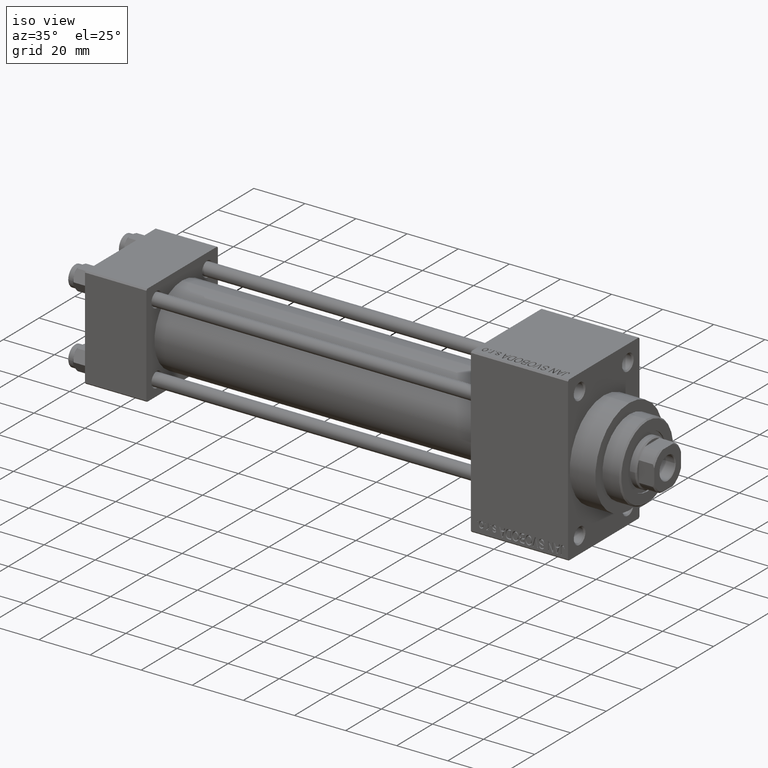
[diagram: clean part render]
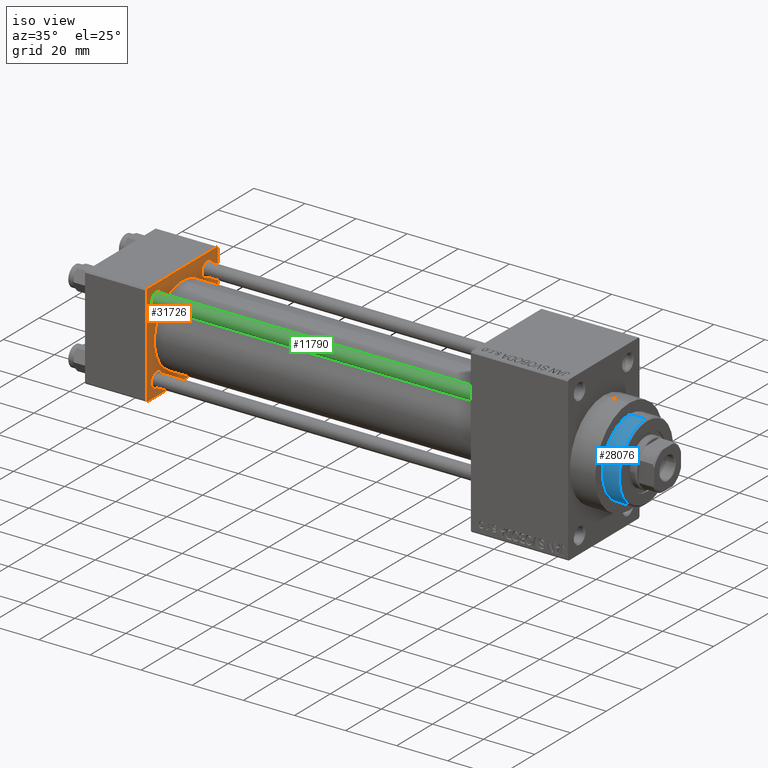
[diagram: same view with three faces highlighted in distinct colors, each labeled with its STEP entity id]
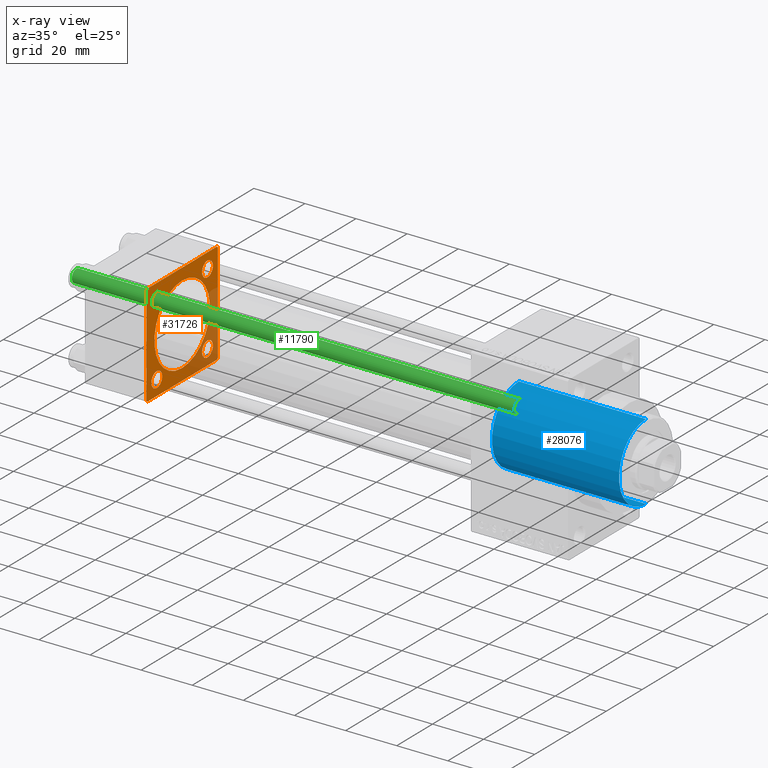
[diagram: x-ray of the same camera — body ghosted, the three highlighted faces saturated]
A machine part, iso view with three faces highlighted in distinct colors.
The next image is the same camera in x-ray (body ghosted, the three faces saturated) — at least one of them is partly hidden behind the body in this view.
Their STEP definitions:

[orange] entity #31726 — the highlighted planar face has unit normal (-1, 0, 0).
#9 = EDGE_CURVE ( 'NONE', #19462, #23766, #14274, .T. ) ;
#228 = VERTEX_POINT ( 'NONE', #38848 ) ;
#240 = LINE ( 'NONE', #36621, #46624 ) ;
#403 = FACE_BOUND ( 'NONE', #22604, .T. ) ;
#1099 = FACE_OUTER_BOUND ( 'NONE', #10212, .T. ) ;
#1164 = EDGE_CURVE ( 'NONE', #3238, #14488, #34077, .T. ) ;
#2037 = CARTESIAN_POINT ( 'NONE',  ( 24.00000000000000000, -20.00000000000000355, 19.49999999999998224 ) ) ;
#2334 = CARTESIAN_POINT ( 'NONE',  ( 23.99999999999999289, -2.602085213965210642E-15, 15.50000000000000000 ) ) ;
#3238 = VERTEX_POINT ( 'NONE', #9308 ) ;
#3998 = ORIENTED_EDGE ( 'NONE', *, *, #44336, .T. ) ;
#4413 = DIRECTION ( 'NONE',  ( 0.000000000000000000, 0.000000000000000000, 1.000000000000000000 ) ) ;
#4822 = AXIS2_PLACEMENT_3D ( 'NONE', #14562, #14332, #43355 ) ;
#4842 = CARTESIAN_POINT ( 'NONE',  ( 24.00000000000000000, -19.50000000000000711, -20.00000000000000000 ) ) ;
#5554 = ORIENTED_EDGE ( 'NONE', *, *, #27272, .T. ) ;
#5600 = AXIS2_PLACEMENT_3D ( 'NONE', #34516, #38561, #30949 ) ;
#5924 = ORIENTED_EDGE ( 'NONE', *, *, #26615, .F. ) ;
#5961 = DIRECTION ( 'NONE',  ( 1.000000000000000000, 0.000000000000000000, 0.000000000000000000 ) ) ;
#6075 = DIRECTION ( 'NONE',  ( -0.000000000000000000, -0.7071067811865500152, -0.7071067811865451302 ) ) ;
#6253 = EDGE_LOOP ( 'NONE', ( #37983, #5554 ) ) ;
#6348 = CARTESIAN_POINT ( 'NONE',  ( 24.00000000000000000, -20.00000000000000355, 19.49999999999998224 ) ) ;
#6522 = DIRECTION ( 'NONE',  ( 0.000000000000000000, -0.7071067811865425767, 0.7071067811865525687 ) ) ;
#7330 = DIRECTION ( 'NONE',  ( -1.000000000000000000, -0.000000000000000000, -0.000000000000000000 ) ) ;
#7341 = CARTESIAN_POINT ( 'NONE',  ( 24.00000000000000000, -14.14999999999999503, 17.14999999999998082 ) ) ;
#7560 = CARTESIAN_POINT ( 'NONE',  ( 24.00000000000000000, 14.14999999999999858, 14.15000000000000036 ) ) ;
#7843 = AXIS2_PLACEMENT_3D ( 'NONE', #7560, #7330, #36339 ) ;
#7966 = EDGE_CURVE ( 'NONE', #18482, #35179, #20753, .T. ) ;
#8704 = DIRECTION ( 'NONE',  ( -1.000000000000000000, 0.000000000000000000, -0.000000000000000000 ) ) ;
#8874 = CARTESIAN_POINT ( 'NONE',  ( 24.00000000000000000, 14.14999999999999858, -11.14999999999999858 ) ) ;
#8926 = EDGE_CURVE ( 'NONE', #23766, #19462, #26861, .T. ) ;
#9164 = LINE ( 'NONE', #2037, #36183 ) ;
#9308 = CARTESIAN_POINT ( 'NONE',  ( 24.00000000000000000, -20.00000000000000000, -19.49999999999999645 ) ) ;
#9325 = EDGE_CURVE ( 'NONE', #228, #10269, #23058, .T. ) ;
#9643 = EDGE_CURVE ( 'NONE', #19642, #18860, #24619, .T. ) ;
#9784 = EDGE_CURVE ( 'NONE', #44949, #3238, #240, .T. ) ;
#10212 = EDGE_LOOP ( 'NONE', ( #16263, #11639, #24474, #26959, #20882, #43884, #32106, #20933 ) ) ;
#10269 = VERTEX_POINT ( 'NONE', #19421 ) ;
#10627 = FACE_BOUND ( 'NONE', #45161, .T. ) ;
#11196 = EDGE_CURVE ( 'NONE', #43273, #29149, #24646, .T. ) ;
#11223 = CARTESIAN_POINT ( 'NONE',  ( 24.00000000000000000, -19.50000000000000711, -20.00000000000000000 ) ) ;
#11307 = DIRECTION ( 'NONE',  ( -1.000000000000000000, -0.000000000000000000, -0.000000000000000000 ) ) ;
#11316 = CARTESIAN_POINT ( 'NONE',  ( 24.00000000000000000, 14.14999999999999858, -14.15000000000000036 ) ) ;
#11639 = ORIENTED_EDGE ( 'NONE', *, *, #12547, .T. ) ;
#12005 = DIRECTION ( 'NONE',  ( 0.000000000000000000, 0.000000000000000000, 1.000000000000000000 ) ) ;
#12282 = VERTEX_POINT ( 'NONE', #39762 ) ;
#12468 = EDGE_LOOP ( 'NONE', ( #15578, #5924 ) ) ;
#12547 = EDGE_CURVE ( 'NONE', #12282, #27578, #17349, .T. ) ;
#13091 = CARTESIAN_POINT ( 'NONE',  ( 24.00000000000000000, 20.00000000000000000, 19.49999999999999289 ) ) ;
#13683 = DIRECTION ( 'NONE',  ( 0.000000000000000000, 0.000000000000000000, -1.000000000000000000 ) ) ;
#13700 = CARTESIAN_POINT ( 'NONE',  ( 24.00000000000000000, 20.00000000000000000, 20.00000000000000000 ) ) ;
#13791 = VECTOR ( 'NONE', #15311, 1000.000000000000000 ) ;
#13890 = AXIS2_PLACEMENT_3D ( 'NONE', #43905, #11307, #12005 ) ;
#13939 = VERTEX_POINT ( 'NONE', #33907 ) ;
#14274 = CIRCLE ( 'NONE', #34021, 3.000000000000000888 ) ;
#14332 = DIRECTION ( 'NONE',  ( -1.000000000000000000, -0.000000000000000000, -0.000000000000000000 ) ) ;
#14488 = VERTEX_POINT ( 'NONE', #11223 ) ;
#14489 = DIRECTION ( 'NONE',  ( 0.000000000000000000, -1.000000000000000000, 1.734723475976807094E-16 ) ) ;
#14562 = CARTESIAN_POINT ( 'NONE',  ( 24.00000000000000000, -14.14999999999999503, -14.15000000000000391 ) ) ;
#15299 = VECTOR ( 'NONE', #6522, 999.9999999999998863 ) ;
#15311 = DIRECTION ( 'NONE',  ( 0.000000000000000000, 0.7071067811865401342, -0.7071067811865549002 ) ) ;
#15578 = ORIENTED_EDGE ( 'NONE', *, *, #28873, .F. ) ;
#15837 = PLANE ( 'NONE',  #24314 ) ;
#16263 = ORIENTED_EDGE ( 'NONE', *, *, #39859, .F. ) ;
#16319 = DIRECTION ( 'NONE',  ( 0.000000000000000000, 0.000000000000000000, 1.000000000000000000 ) ) ;
#16451 = CARTESIAN_POINT ( 'NONE',  ( 24.00000000000000000, -19.49999999999999289, 19.99999999999998934 ) ) ;
#17015 = CARTESIAN_POINT ( 'NONE',  ( 24.00000000000000000, 14.14999999999999858, 11.14999999999999858 ) ) ;
#17252 = LINE ( 'NONE', #46275, #29492 ) ;
#17349 = LINE ( 'NONE', #46146, #17859 ) ;
#17598 = VECTOR ( 'NONE', #14489, 1000.000000000000000 ) ;
#17859 = VECTOR ( 'NONE', #39232, 1000.000000000000000 ) ;
#18224 = DIRECTION ( 'NONE',  ( 0.000000000000000000, 0.000000000000000000, 1.000000000000000000 ) ) ;
#18482 = VERTEX_POINT ( 'NONE', #31276 ) ;
#18709 = FACE_BOUND ( 'NONE', #12468, .T. ) ;
#18860 = VERTEX_POINT ( 'NONE', #45503 ) ;
#19409 = EDGE_CURVE ( 'NONE', #29149, #44949, #9164, .T. ) ;
#19421 = CARTESIAN_POINT ( 'NONE',  ( 24.00000000000000000, -14.14999999999999503, -11.15000000000002878 ) ) ;
#19462 = VERTEX_POINT ( 'NONE', #17015 ) ;
#19642 = VERTEX_POINT ( 'NONE', #8874 ) ;
#20369 = CARTESIAN_POINT ( 'NONE',  ( 24.00000000000000000, 19.50000000000000000, 20.00000000000000000 ) ) ;
#20753 = CIRCLE ( 'NONE', #13890, 2.999999999999976463 ) ;
#20882 = ORIENTED_EDGE ( 'NONE', *, *, #11196, .T. ) ;
#20933 = ORIENTED_EDGE ( 'NONE', *, *, #1164, .T. ) ;
#20987 = CARTESIAN_POINT ( 'NONE',  ( 24.00000000000000000, -14.14999999999999503, 14.15000000000000391 ) ) ;
#21013 = DIRECTION ( 'NONE',  ( 0.000000000000000000, 0.000000000000000000, 1.000000000000000000 ) ) ;
#21082 = ORIENTED_EDGE ( 'NONE', *, *, #9325, .T. ) ;
#21890 = DIRECTION ( 'NONE',  ( 0.000000000000000000, 8.673617379884036705E-17, -1.000000000000000000 ) ) ;
#22285 = FACE_BOUND ( 'NONE', #6253, .T. ) ;
#22604 = EDGE_LOOP ( 'NONE', ( #44125, #29274 ) ) ;
#23058 = CIRCLE ( 'NONE', #4822, 2.999999999999976463 ) ;
#23071 = AXIS2_PLACEMENT_3D ( 'NONE', #11316, #25816, #4413 ) ;
#23126 = VECTOR ( 'NONE', #42270, 1000.000000000000000 ) ;
#23134 = VERTEX_POINT ( 'NONE', #13091 ) ;
#23766 = VERTEX_POINT ( 'NONE', #29353 ) ;
#24048 = DIRECTION ( 'NONE',  ( 0.000000000000000000, 0.000000000000000000, 1.000000000000000000 ) ) ;
#24276 = CARTESIAN_POINT ( 'NONE',  ( 23.99999999999999289, -2.602085213965210642E-15, 0.000000000000000000 ) ) ;
#24314 = AXIS2_PLACEMENT_3D ( 'NONE', #36786, #8704, #33674 ) ;
#24474 = ORIENTED_EDGE ( 'NONE', *, *, #24702, .F. ) ;
#24593 = ORIENTED_EDGE ( 'NONE', *, *, #9643, .T. ) ;
#24619 = CIRCLE ( 'NONE', #5600, 3.000000000000004441 ) ;
#24646 = LINE ( 'NONE', #13700, #23126 ) ;
#24702 = EDGE_CURVE ( 'NONE', #23134, #27578, #17252, .T. ) ;
#25816 = DIRECTION ( 'NONE',  ( -1.000000000000000000, -0.000000000000000000, -0.000000000000000000 ) ) ;
#26615 = EDGE_CURVE ( 'NONE', #13939, #31644, #44009, .T. ) ;
#26861 = CIRCLE ( 'NONE', #7843, 3.000000000000000888 ) ;
#26959 = ORIENTED_EDGE ( 'NONE', *, *, #34856, .T. ) ;
#27021 = DIRECTION ( 'NONE',  ( -1.000000000000000000, -0.000000000000000000, -0.000000000000000000 ) ) ;
#27272 = EDGE_CURVE ( 'NONE', #35179, #18482, #40981, .T. ) ;
#27578 = VERTEX_POINT ( 'NONE', #37133 ) ;
#28869 = CARTESIAN_POINT ( 'NONE',  ( 24.00000000000000000, 19.50000000000000000, 20.00000000000000000 ) ) ;
#28873 = EDGE_CURVE ( 'NONE', #31644, #13939, #44810, .T. ) ;
#29149 = VERTEX_POINT ( 'NONE', #16451 ) ;
#29274 = ORIENTED_EDGE ( 'NONE', *, *, #8926, .T. ) ;
#29353 = CARTESIAN_POINT ( 'NONE',  ( 24.00000000000000000, 14.14999999999999858, 17.15000000000000568 ) ) ;
#29492 = VECTOR ( 'NONE', #13683, 1000.000000000000000 ) ;
#30949 = DIRECTION ( 'NONE',  ( 0.000000000000000000, 0.000000000000000000, 1.000000000000000000 ) ) ;
#31276 = CARTESIAN_POINT ( 'NONE',  ( 24.00000000000000000, -14.14999999999999503, 11.15000000000002878 ) ) ;
#31467 = DIRECTION ( 'NONE',  ( 0.000000000000000000, 0.000000000000000000, 1.000000000000000000 ) ) ;
#31644 = VERTEX_POINT ( 'NONE', #2334 ) ;
#31726 = ADVANCED_FACE ( 'NONE', ( #10627, #40835, #22285, #403, #18709, #1099 ), #15837, .F. ) ;
#31738 = LINE ( 'NONE', #28869, #15299 ) ;
#31784 = ORIENTED_EDGE ( 'NONE', *, *, #35394, .T. ) ;
#32018 = DIRECTION ( 'NONE',  ( -1.000000000000000000, -0.000000000000000000, -0.000000000000000000 ) ) ;
#32106 = ORIENTED_EDGE ( 'NONE', *, *, #9784, .T. ) ;
#33674 = DIRECTION ( 'NONE',  ( -0.000000000000000000, 0.000000000000000000, 1.000000000000000000 ) ) ;
#33907 = CARTESIAN_POINT ( 'NONE',  ( 23.99999999999999289, -7.038826752868131828E-16, -15.50000000000000000 ) ) ;
#34021 = AXIS2_PLACEMENT_3D ( 'NONE', #35096, #27021, #16319 ) ;
#34077 = LINE ( 'NONE', #4842, #13791 ) ;
#34516 = CARTESIAN_POINT ( 'NONE',  ( 24.00000000000000000, 14.14999999999999858, -14.15000000000000036 ) ) ;
#34856 = EDGE_CURVE ( 'NONE', #23134, #43273, #31738, .T. ) ;
#35096 = CARTESIAN_POINT ( 'NONE',  ( 24.00000000000000000, 14.14999999999999858, 14.15000000000000036 ) ) ;
#35179 = VERTEX_POINT ( 'NONE', #7341 ) ;
#35394 = EDGE_CURVE ( 'NONE', #10269, #228, #46438, .T. ) ;
#36183 = VECTOR ( 'NONE', #6075, 1000.000000000000114 ) ;
#36339 = DIRECTION ( 'NONE',  ( 0.000000000000000000, 0.000000000000000000, 1.000000000000000000 ) ) ;
#36621 = CARTESIAN_POINT ( 'NONE',  ( 24.00000000000000000, -20.00000000000000355, 19.99999999999998934 ) ) ;
#36786 = CARTESIAN_POINT ( 'NONE',  ( 24.00000000000000000, 0.000000000000000000, 0.000000000000000000 ) ) ;
#37133 = CARTESIAN_POINT ( 'NONE',  ( 24.00000000000000000, 20.00000000000000000, -19.50000000000002132 ) ) ;
#37203 = AXIS2_PLACEMENT_3D ( 'NONE', #20987, #42415, #31467 ) ;
#37983 = ORIENTED_EDGE ( 'NONE', *, *, #7966, .T. ) ;
#38069 = AXIS2_PLACEMENT_3D ( 'NONE', #42742, #32018, #18224 ) ;
#38561 = DIRECTION ( 'NONE',  ( -1.000000000000000000, -0.000000000000000000, -0.000000000000000000 ) ) ;
#38848 = CARTESIAN_POINT ( 'NONE',  ( 24.00000000000000000, -14.14999999999999503, -17.14999999999998082 ) ) ;
#39232 = DIRECTION ( 'NONE',  ( -0.000000000000000000, 0.7071067811865524577, 0.7071067811865426878 ) ) ;
#39762 = CARTESIAN_POINT ( 'NONE',  ( 24.00000000000000000, 19.50000000000000711, -20.00000000000000711 ) ) ;
#39859 = EDGE_CURVE ( 'NONE', #12282, #14488, #47075, .T. ) ;
#40607 = EDGE_LOOP ( 'NONE', ( #3998, #24593 ) ) ;
#40835 = FACE_BOUND ( 'NONE', #40607, .T. ) ;
#40981 = CIRCLE ( 'NONE', #37203, 2.999999999999976463 ) ;
#41965 = CARTESIAN_POINT ( 'NONE',  ( 23.99999999999999289, -2.602085213965210642E-15, 0.000000000000000000 ) ) ;
#42270 = DIRECTION ( 'NONE',  ( 0.000000000000000000, -1.000000000000000000, -2.602085213965210149E-16 ) ) ;
#42415 = DIRECTION ( 'NONE',  ( -1.000000000000000000, -0.000000000000000000, -0.000000000000000000 ) ) ;
#42742 = CARTESIAN_POINT ( 'NONE',  ( 24.00000000000000000, -14.14999999999999503, -14.15000000000000391 ) ) ;
#43273 = VERTEX_POINT ( 'NONE', #20369 ) ;
#43355 = DIRECTION ( 'NONE',  ( 0.000000000000000000, 0.000000000000000000, 1.000000000000000000 ) ) ;
#43584 = CIRCLE ( 'NONE', #23071, 3.000000000000004441 ) ;
#43760 = CARTESIAN_POINT ( 'NONE',  ( 24.00000000000000000, 20.00000000000000000, -20.00000000000000711 ) ) ;
#43884 = ORIENTED_EDGE ( 'NONE', *, *, #19409, .T. ) ;
#43905 = CARTESIAN_POINT ( 'NONE',  ( 24.00000000000000000, -14.14999999999999503, 14.15000000000000391 ) ) ;
#44009 = CIRCLE ( 'NONE', #44742, 15.50000000000000000 ) ;
#44125 = ORIENTED_EDGE ( 'NONE', *, *, #9, .T. ) ;
#44336 = EDGE_CURVE ( 'NONE', #18860, #19642, #43584, .T. ) ;
#44742 = AXIS2_PLACEMENT_3D ( 'NONE', #24276, #5961, #24048 ) ;
#44810 = CIRCLE ( 'NONE', #46340, 15.50000000000000000 ) ;
#44949 = VERTEX_POINT ( 'NONE', #6348 ) ;
#45161 = EDGE_LOOP ( 'NONE', ( #21082, #31784 ) ) ;
#45503 = CARTESIAN_POINT ( 'NONE',  ( 24.00000000000000000, 14.14999999999999858, -17.15000000000000568 ) ) ;
#46146 = CARTESIAN_POINT ( 'NONE',  ( 24.00000000000000000, 20.00000000000000000, -19.50000000000002132 ) ) ;
#46236 = DIRECTION ( 'NONE',  ( 1.000000000000000000, 0.000000000000000000, 0.000000000000000000 ) ) ;
#46275 = CARTESIAN_POINT ( 'NONE',  ( 24.00000000000000000, 20.00000000000000000, 20.00000000000000000 ) ) ;
#46340 = AXIS2_PLACEMENT_3D ( 'NONE', #41965, #46236, #21013 ) ;
#46438 = CIRCLE ( 'NONE', #38069, 2.999999999999976463 ) ;
#46624 = VECTOR ( 'NONE', #21890, 1000.000000000000000 ) ;
#47075 = LINE ( 'NONE', #43760, #17598 ) ;

[blue] entity #28076 — the highlighted cylindrical surface (partial cylindrical patch) has radius 15 mm, axis along (-1, 0, 0).
#54 = DIRECTION ( 'NONE',  ( 0.000000000000000000, 0.000000000000000000, 1.000000000000000000 ) ) ;
#1331 = VERTEX_POINT ( 'NONE', #10747 ) ;
#1937 = VECTOR ( 'NONE', #16588, 1000.000000000000000 ) ;
#3748 = DIRECTION ( 'NONE',  ( -1.000000000000000000, 0.000000000000000000, 0.000000000000000000 ) ) ;
#6599 = CYLINDRICAL_SURFACE ( 'NONE', #32611, 15.00000000000000000 ) ;
#7068 = FACE_OUTER_BOUND ( 'NONE', #26619, .T. ) ;
#7224 = LINE ( 'NONE', #21970, #7885 ) ;
#7885 = VECTOR ( 'NONE', #36705, 1000.000000000000000 ) ;
#7942 = DIRECTION ( 'NONE',  ( 0.000000000000000000, 0.000000000000000000, -1.000000000000000000 ) ) ;
#9415 = EDGE_CURVE ( 'NONE', #43494, #15227, #10116, .T. ) ;
#10022 = CARTESIAN_POINT ( 'NONE',  ( 15.00000000000000000, 1.836970198721029589E-15, 0.000000000000000000 ) ) ;
#10082 = ORIENTED_EDGE ( 'NONE', *, *, #44538, .F. ) ;
#10116 = CIRCLE ( 'NONE', #16195, 15.00000000000000000 ) ;
#10296 = DIRECTION ( 'NONE',  ( 1.000000000000000000, 0.000000000000000000, 0.000000000000000000 ) ) ;
#10747 = CARTESIAN_POINT ( 'NONE',  ( 15.00000000000000000, 1.836970198721029589E-15, 49.75999999999998380 ) ) ;
#12697 = EDGE_CURVE ( 'NONE', #1331, #43494, #13017, .T. ) ;
#13017 = LINE ( 'NONE', #26830, #1937 ) ;
#14791 = CARTESIAN_POINT ( 'NONE',  ( -15.00000000000000000, 0.000000000000000000, 0.000000000000000000 ) ) ;
#15227 = VERTEX_POINT ( 'NONE', #14791 ) ;
#16195 = AXIS2_PLACEMENT_3D ( 'NONE', #39088, #54, #10296 ) ;
#16588 = DIRECTION ( 'NONE',  ( -0.000000000000000000, -0.000000000000000000, -1.000000000000000000 ) ) ;
#17382 = VERTEX_POINT ( 'NONE', #37060 ) ;
#21970 = CARTESIAN_POINT ( 'NONE',  ( -15.00000000000000000, 0.000000000000000000, 43.25999999999999801 ) ) ;
#23948 = EDGE_CURVE ( 'NONE', #17382, #1331, #31774, .T. ) ;
#26619 = EDGE_LOOP ( 'NONE', ( #29688, #41251, #29605, #10082 ) ) ;
#26830 = CARTESIAN_POINT ( 'NONE',  ( 15.00000000000000000, 1.836970198721029589E-15, 43.25999999999999801 ) ) ;
#28076 = ADVANCED_FACE ( 'NONE', ( #7068 ), #6599, .T. ) ;
#29605 = ORIENTED_EDGE ( 'NONE', *, *, #9415, .T. ) ;
#29688 = ORIENTED_EDGE ( 'NONE', *, *, #23948, .T. ) ;
#30284 = CARTESIAN_POINT ( 'NONE',  ( 0.000000000000000000, 0.000000000000000000, 49.75999999999998380 ) ) ;
#31774 = CIRCLE ( 'NONE', #43184, 15.00000000000000000 ) ;
#32611 = AXIS2_PLACEMENT_3D ( 'NONE', #47019, #43226, #3748 ) ;
#36705 = DIRECTION ( 'NONE',  ( -0.000000000000000000, -0.000000000000000000, -1.000000000000000000 ) ) ;
#37060 = CARTESIAN_POINT ( 'NONE',  ( -15.00000000000000000, 0.000000000000000000, 49.75999999999998380 ) ) ;
#39088 = CARTESIAN_POINT ( 'NONE',  ( 0.000000000000000000, 0.000000000000000000, 0.000000000000000000 ) ) ;
#41251 = ORIENTED_EDGE ( 'NONE', *, *, #12697, .T. ) ;
#43184 = AXIS2_PLACEMENT_3D ( 'NONE', #30284, #7942, #44347 ) ;
#43226 = DIRECTION ( 'NONE',  ( -0.000000000000000000, -0.000000000000000000, -1.000000000000000000 ) ) ;
#43494 = VERTEX_POINT ( 'NONE', #10022 ) ;
#44347 = DIRECTION ( 'NONE',  ( 1.000000000000000000, 0.000000000000000000, 0.000000000000000000 ) ) ;
#44538 = EDGE_CURVE ( 'NONE', #17382, #15227, #7224, .T. ) ;
#47019 = CARTESIAN_POINT ( 'NONE',  ( 0.000000000000000000, 0.000000000000000000, 43.25999999999999801 ) ) ;

[green] entity #11790 — the highlighted cylindrical surface (edge-blend (fillet) strip) has radius 2.5 mm, axis along (1, 0, 0).
#1418 = ORIENTED_EDGE ( 'NONE', *, *, #15713, .T. ) ;
#2281 = DIRECTION ( 'NONE',  ( -0.000000000000000000, -0.000000000000000000, 1.000000000000000000 ) ) ;
#5173 = DIRECTION ( 'NONE',  ( -1.000000000000000000, 0.000000000000000000, 0.000000000000000000 ) ) ;
#6315 = CARTESIAN_POINT ( 'NONE',  ( 0.000000000000000000, 0.000000000000000000, 0.5000000000000281997 ) ) ;
#6917 = VERTEX_POINT ( 'NONE', #22534 ) ;
#7006 = VECTOR ( 'NONE', #24767, 1000.000000000000000 ) ;
#7019 = ORIENTED_EDGE ( 'NONE', *, *, #40156, .T. ) ;
#8722 = AXIS2_PLACEMENT_3D ( 'NONE', #16349, #20148, #5173 ) ;
#10259 = CARTESIAN_POINT ( 'NONE',  ( 2.500000000000000000, 3.061616997868383141E-16, 174.0000000000000000 ) ) ;
#10951 = VECTOR ( 'NONE', #44787, 1000.000000000000000 ) ;
#11790 = ADVANCED_FACE ( 'NONE', ( #30615 ), #27053, .T. ) ;
#15713 = EDGE_CURVE ( 'NONE', #6917, #39470, #19445, .T. ) ;
#16349 = CARTESIAN_POINT ( 'NONE',  ( 0.000000000000000000, 0.000000000000000000, 174.0000000000000000 ) ) ;
#16533 = DIRECTION ( 'NONE',  ( 1.000000000000000000, 0.000000000000000000, 0.000000000000000000 ) ) ;
#16746 = VERTEX_POINT ( 'NONE', #37732 ) ;
#19445 = CIRCLE ( 'NONE', #46045, 2.500000000000000000 ) ;
#20148 = DIRECTION ( 'NONE',  ( -0.000000000000000000, -0.000000000000000000, -1.000000000000000000 ) ) ;
#20275 = LINE ( 'NONE', #27172, #10951 ) ;
#21924 = EDGE_LOOP ( 'NONE', ( #43586, #7019, #1418, #26523 ) ) ;
#22534 = CARTESIAN_POINT ( 'NONE',  ( 2.500000000000000000, 3.061616997868383141E-16, 0.5000000000000281997 ) ) ;
#22934 = CIRCLE ( 'NONE', #24468, 2.500000000000000000 ) ;
#23679 = CARTESIAN_POINT ( 'NONE',  ( 0.000000000000000000, 0.000000000000000000, 173.5000000000000000 ) ) ;
#24468 = AXIS2_PLACEMENT_3D ( 'NONE', #23679, #38174, #16533 ) ;
#24767 = DIRECTION ( 'NONE',  ( -0.000000000000000000, -0.000000000000000000, -1.000000000000000000 ) ) ;
#26523 = ORIENTED_EDGE ( 'NONE', *, *, #45425, .F. ) ;
#27053 = CYLINDRICAL_SURFACE ( 'NONE', #8722, 2.500000000000000000 ) ;
#27172 = CARTESIAN_POINT ( 'NONE',  ( -2.500000000000000000, 0.000000000000000000, 174.0000000000000000 ) ) ;
#28427 = DIRECTION ( 'NONE',  ( 1.000000000000000000, 0.000000000000000000, 0.000000000000000000 ) ) ;
#30615 = FACE_OUTER_BOUND ( 'NONE', #21924, .T. ) ;
#31931 = VERTEX_POINT ( 'NONE', #42244 ) ;
#35473 = LINE ( 'NONE', #10259, #7006 ) ;
#36747 = EDGE_CURVE ( 'NONE', #16746, #31931, #22934, .T. ) ;
#37732 = CARTESIAN_POINT ( 'NONE',  ( -2.500000000000000000, 0.000000000000000000, 173.5000000000000000 ) ) ;
#38174 = DIRECTION ( 'NONE',  ( 0.000000000000000000, 0.000000000000000000, -1.000000000000000000 ) ) ;
#39470 = VERTEX_POINT ( 'NONE', #42235 ) ;
#40156 = EDGE_CURVE ( 'NONE', #31931, #6917, #35473, .T. ) ;
#42235 = CARTESIAN_POINT ( 'NONE',  ( -2.500000000000000000, 0.000000000000000000, 0.5000000000000281997 ) ) ;
#42244 = CARTESIAN_POINT ( 'NONE',  ( 2.500000000000000000, 3.061616997868383141E-16, 173.5000000000000000 ) ) ;
#43586 = ORIENTED_EDGE ( 'NONE', *, *, #36747, .T. ) ;
#44787 = DIRECTION ( 'NONE',  ( -0.000000000000000000, -0.000000000000000000, -1.000000000000000000 ) ) ;
#45425 = EDGE_CURVE ( 'NONE', #16746, #39470, #20275, .T. ) ;
#46045 = AXIS2_PLACEMENT_3D ( 'NONE', #6315, #2281, #28427 ) ;